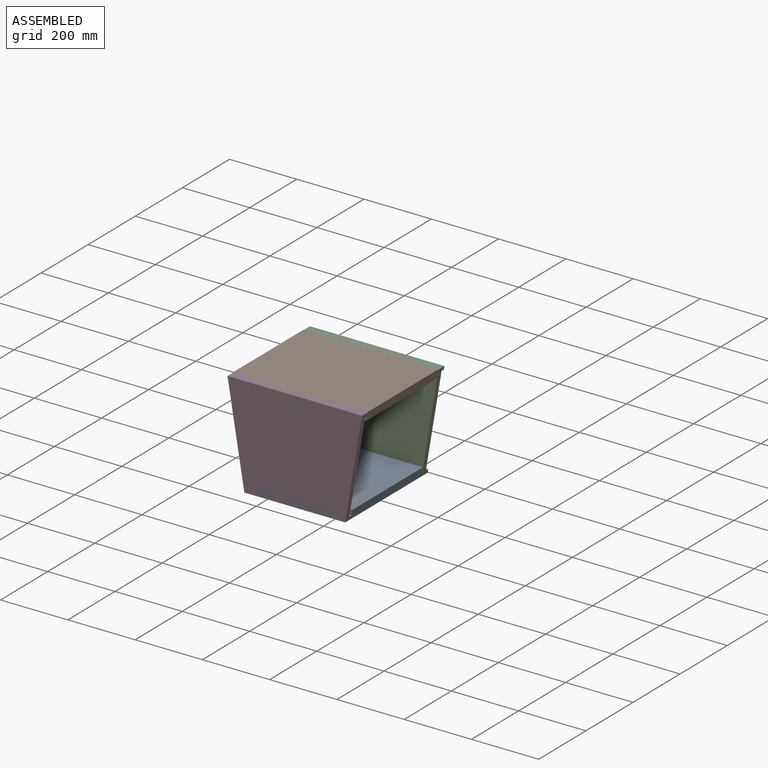
[diagram: assembled view]
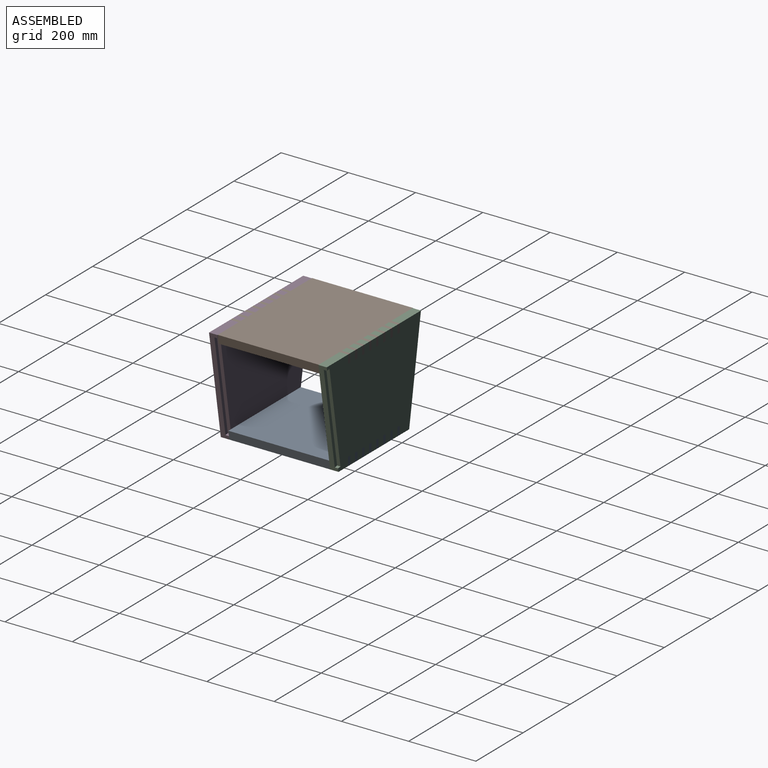
[diagram: assembled view, second angle]
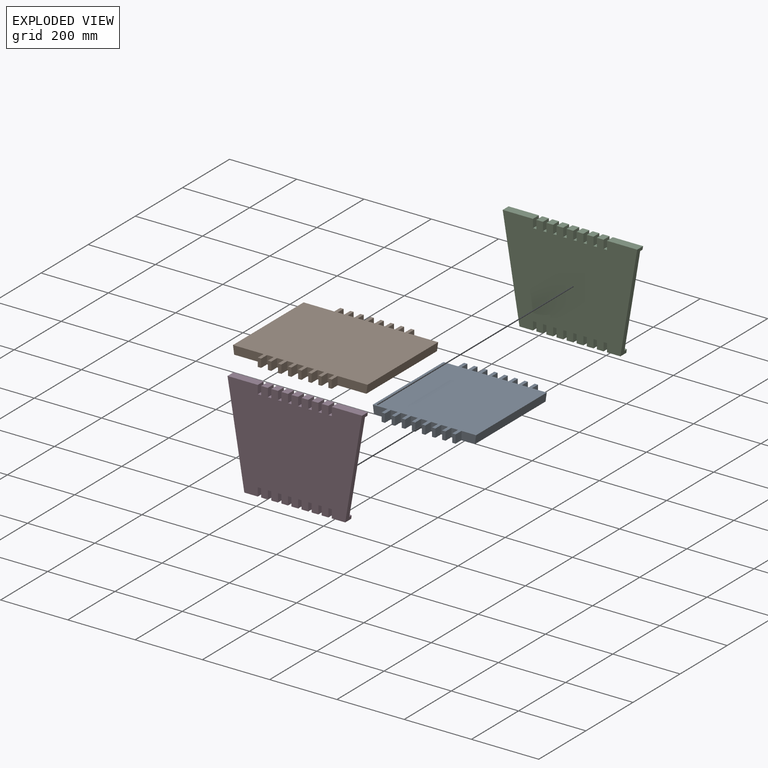
[diagram: exploded view]
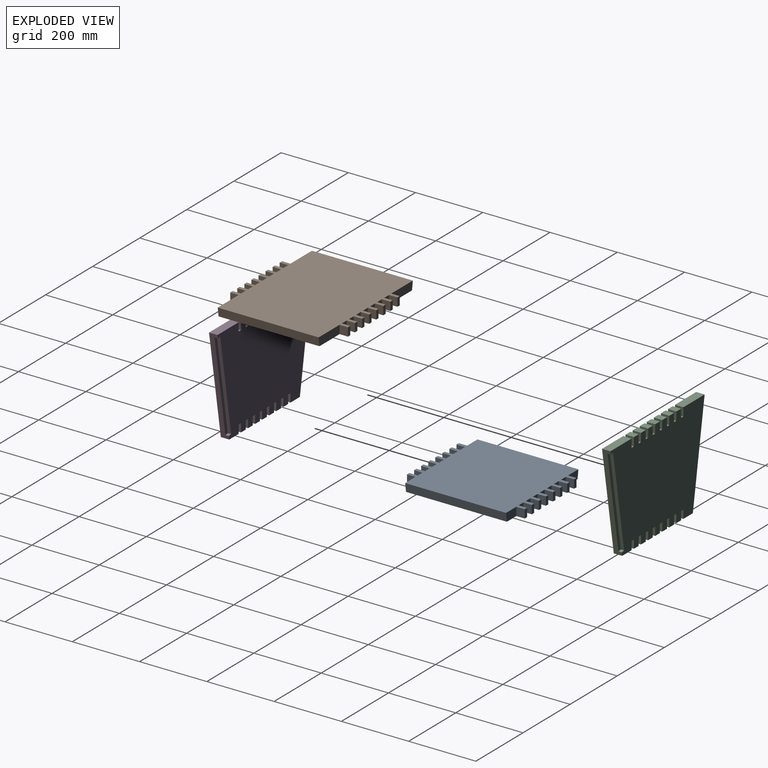
[diagram: exploded view, second angle]
ASSEMBLY  parts=4 mates=3
PART A: 70 faces, bbox 307x350x25 mm
  f0: plane 25x20mm, normal (0,1,0), area 500mm2, adj f1,f67,f68,f69
  f1: plane 25x25mm, normal (1,0,0), area 625mm2, adj f0,f2,f68,f69
  f2: plane 25x10mm, normal (0,1,0), area 250mm2, adj f1,f3,f68,f69
  f3: plane 25x25mm, normal (-1,0,0), area 625mm2, adj f2,f4,f68,f69
  f4: plane 25x20mm, normal (0,1,0), area 500mm2, adj f3,f5,f68,f69
  f5: plane 25x25mm, normal (1,0,0), area 625mm2, adj f4,f6,f68,f69
  f6: plane 25x10mm, normal (0,1,0), area 250mm2, adj f5,f7,f68,f69
  f7: plane 25x25mm, normal (-1,0,0), area 625mm2, adj f6,f8,f68,f69
  f8: plane 25x20mm, normal (0,1,0), area 500mm2, adj f7,f9,f68,f69
  f9: plane 25x25mm, normal (1,0,0), area 625mm2, adj f8,f10,f68,f69
  f10: plane 25x10mm, normal (0,1,0), area 250mm2, adj f9,f11,f68,f69
  f11: plane 25x25mm, normal (-1,0,0), area 625mm2, adj f10,f12,f68,f69
  f12: plane 25x20mm, normal (0,1,0), area 500mm2, adj f11,f13,f68,f69
  f13: plane 25x25mm, normal (1,0,0), area 625mm2, adj f12,f14,f68,f69
  f14: plane 25x10mm, normal (0,1,0), area 250mm2, adj f13,f15,f68,f69
  f15: plane 25x25mm, normal (-1,0,0), area 625mm2, adj f14,f16,f68,f69
  f16: plane 43.51x25mm, normal (0,1,0), area 1043.9mm2, adj f15,f17,f68,f69
  f17: plane 300x25mm, normal (-0.99,0,-0.14), area 7573.7mm2, adj f16,f18,f68,f69
  f18: plane 43.51x25mm, normal (0,-1,0), area 1043.9mm2, adj f17,f19,f68,f69
  f19: plane 25x25mm, normal (-1,0,0), area 625mm2, adj f18,f20,f68,f69
  f20: plane 25x10mm, normal (0,-1,0), area 250mm2, adj f19,f21,f68,f69
  f21: plane 25x25mm, normal (1,0,0), area 625mm2, adj f20,f22,f68,f69
  f22: plane 25x20mm, normal (0,-1,0), area 500mm2, adj f21,f23,f68,f69
  f23: plane 25x25mm, normal (-1,0,0), area 625mm2, adj f22,f24,f68,f69
  f24: plane 25x10mm, normal (0,-1,0), area 250mm2, adj f23,f25,f68,f69
  f25: plane 25x25mm, normal (1,0,0), area 625mm2, adj f24,f26,f68,f69
  f26: plane 25x20mm, normal (0,-1,0), area 500mm2, adj f25,f27,f68,f69
  f27: plane 25x25mm, normal (-1,0,0), area 625mm2, adj f26,f28,f68,f69
  f28: plane 25x10mm, normal (0,-1,0), area 250mm2, adj f27,f29,f68,f69
  f29: plane 25x25mm, normal (1,0,0), area 625mm2, adj f28,f30,f68,f69
  f30: plane 25x20mm, normal (0,-1,0), area 500mm2, adj f29,f31,f68,f69
  f31: plane 25x25mm, normal (-1,0,0), area 625mm2, adj f30,f32,f68,f69
  f32: plane 25x10mm, normal (0,-1,0), area 250mm2, adj f31,f33,f68,f69
  f33: plane 25x25mm, normal (1,0,0), area 625mm2, adj f32,f34,f68,f69
  f34: plane 25x20mm, normal (0,-1,0), area 500mm2, adj f33,f35,f68,f69
  f35: plane 25x25mm, normal (-1,0,0), area 625mm2, adj f34,f36,f68,f69
  f36: plane 25x10mm, normal (0,-1,0), area 250mm2, adj f35,f37,f68,f69
  f37: plane 25x25mm, normal (1,0,0), area 625mm2, adj f36,f38,f68,f69
  f38: plane 25x20mm, normal (0,-1,0), area 500mm2, adj f37,f39,f68,f69
  f39: plane 25x25mm, normal (-1,0,0), area 625mm2, adj f38,f40,f68,f69
  f40: plane 25x10mm, normal (0,-1,0), area 250mm2, adj f39,f41,f68,f69
  f41: plane 25x25mm, normal (1,0,0), area 625mm2, adj f40,f42,f68,f69
  f42: plane 25x20mm, normal (0,-1,0), area 500mm2, adj f41,f43,f68,f69
  f43: plane 25x25mm, normal (-1,0,0), area 625mm2, adj f42,f44,f68,f69
  f44: plane 25x10mm, normal (0,-1,0), area 250mm2, adj f43,f45,f68,f69
  f45: plane 25x25mm, normal (1,0,0), area 625mm2, adj f44,f46,f68,f69
  f46: plane 25x20mm, normal (0,-1,0), area 500mm2, adj f45,f47,f68,f69
  f47: plane 25x25mm, normal (-1,0,0), area 625mm2, adj f46,f48,f68,f69
  f48: plane 25x10mm, normal (0,-1,0), area 250mm2, adj f47,f49,f68,f69
  f49: plane 25x25mm, normal (1,0,0), area 625mm2, adj f48,f50,f68,f69
  f50: plane 43.51x25mm, normal (0,-1,0), area 1043.9mm2, adj f49,f51,f68,f69
  f51: plane 300x25mm, normal (0.99,0,-0.14), area 7573.7mm2, adj f50,f52,f68,f69
  f52: plane 43.51x25mm, normal (0,1,0), area 1043.9mm2, adj f51,f53,f68,f69
  f53: plane 25x25mm, normal (1,0,0), area 625mm2, adj f52,f54,f68,f69
  f54: plane 25x10mm, normal (0,1,0), area 250mm2, adj f53,f55,f68,f69
  f55: plane 25x25mm, normal (-1,0,0), area 625mm2, adj f54,f56,f68,f69
  f56: plane 25x20mm, normal (0,1,0), area 500mm2, adj f55,f57,f68,f69
  f57: plane 25x25mm, normal (1,0,0), area 625mm2, adj f56,f58,f68,f69
  f58: plane 25x10mm, normal (0,1,0), area 250mm2, adj f57,f59,f68,f69
  f59: plane 25x25mm, normal (-1,0,0), area 625mm2, adj f58,f60,f68,f69
  f60: plane 25x20mm, normal (0,1,0), area 500mm2, adj f59,f61,f68,f69
  f61: plane 25x25mm, normal (1,0,0), area 625mm2, adj f60,f62,f68,f69
  f62: plane 25x10mm, normal (0,1,0), area 250mm2, adj f61,f63,f68,f69
  f63: plane 25x25mm, normal (-1,0,0), area 625mm2, adj f62,f64,f68,f69
  f64: plane 25x20mm, normal (0,1,0), area 500mm2, adj f63,f65,f68,f69
  f65: plane 25x25mm, normal (1,0,0), area 625mm2, adj f64,f66,f68,f69
  f66: plane 25x10mm, normal (0,1,0), area 250mm2, adj f65,f67,f68,f69
  f67: plane 25x25mm, normal (-1,0,0), area 625mm2, adj f0,f66,f68,f69
  f68: plane 350x307.03mm, normal (0,0,1), area 96108.1mm2, adj f0,f1,f2,f3,f4,f5,f6,f7
  f69: plane 350x300mm, normal (0,0,-1), area 94000mm2, adj f0,f1,f2,f3,f4,f5,f6,f7
PART B: 70 faces, bbox 400x350x25 mm
  f0: plane 25x20mm, normal (0,1,0), area 500mm2, adj f1,f67,f68,f69
  f1: plane 25x25mm, normal (1,0,0), area 625mm2, adj f0,f2,f68,f69
  f2: plane 25x10mm, normal (0,1,0), area 250mm2, adj f1,f3,f68,f69
  f3: plane 25x25mm, normal (-1,0,0), area 625mm2, adj f2,f4,f68,f69
  f4: plane 25x20mm, normal (0,1,0), area 500mm2, adj f3,f5,f68,f69
  f5: plane 25x25mm, normal (1,0,0), area 625mm2, adj f4,f6,f68,f69
  f6: plane 25x10mm, normal (0,1,0), area 250mm2, adj f5,f7,f68,f69
  f7: plane 25x25mm, normal (-1,0,0), area 625mm2, adj f6,f8,f68,f69
  f8: plane 25x20mm, normal (0,1,0), area 500mm2, adj f7,f9,f68,f69
  f9: plane 25x25mm, normal (1,0,0), area 625mm2, adj f8,f10,f68,f69
  f10: plane 25x10mm, normal (0,1,0), area 250mm2, adj f9,f11,f68,f69
  f11: plane 25x25mm, normal (-1,0,0), area 625mm2, adj f10,f12,f68,f69
  f12: plane 25x20mm, normal (0,1,0), area 500mm2, adj f11,f13,f68,f69
  f13: plane 25x25mm, normal (1,0,0), area 625mm2, adj f12,f14,f68,f69
  f14: plane 25x10mm, normal (0,1,0), area 250mm2, adj f13,f15,f68,f69
  f15: plane 25x25mm, normal (-1,0,0), area 625mm2, adj f14,f16,f68,f69
  f16: plane 91.27x25mm, normal (0,1,0), area 2237.7mm2, adj f15,f17,f68,f69
  f17: plane 300x25mm, normal (-0.99,0,-0.14), area 7573.7mm2, adj f16,f18,f68,f69
  f18: plane 91.27x25mm, normal (0,-1,0), area 2237.7mm2, adj f17,f19,f68,f69
  f19: plane 25x25mm, normal (-1,0,0), area 625mm2, adj f18,f20,f68,f69
  f20: plane 25x10mm, normal (0,-1,0), area 250mm2, adj f19,f21,f68,f69
  f21: plane 25x25mm, normal (1,0,0), area 625mm2, adj f20,f22,f68,f69
  f22: plane 25x20mm, normal (0,-1,0), area 500mm2, adj f21,f23,f68,f69
  f23: plane 25x25mm, normal (-1,0,0), area 625mm2, adj f22,f24,f68,f69
  f24: plane 25x10mm, normal (0,-1,0), area 250mm2, adj f23,f25,f68,f69
  f25: plane 25x25mm, normal (1,0,0), area 625mm2, adj f24,f26,f68,f69
  f26: plane 25x20mm, normal (0,-1,0), area 500mm2, adj f25,f27,f68,f69
  f27: plane 25x25mm, normal (-1,0,0), area 625mm2, adj f26,f28,f68,f69
  f28: plane 25x10mm, normal (0,-1,0), area 250mm2, adj f27,f29,f68,f69
  f29: plane 25x25mm, normal (1,0,0), area 625mm2, adj f28,f30,f68,f69
  f30: plane 25x20mm, normal (0,-1,0), area 500mm2, adj f29,f31,f68,f69
  f31: plane 25x25mm, normal (-1,0,0), area 625mm2, adj f30,f32,f68,f69
  f32: plane 25x10mm, normal (0,-1,0), area 250mm2, adj f31,f33,f68,f69
  f33: plane 25x25mm, normal (1,0,0), area 625mm2, adj f32,f34,f68,f69
  f34: plane 25x20mm, normal (0,-1,0), area 500mm2, adj f33,f35,f68,f69
  f35: plane 25x25mm, normal (-1,0,0), area 625mm2, adj f34,f36,f68,f69
  f36: plane 25x10mm, normal (0,-1,0), area 250mm2, adj f35,f37,f68,f69
  f37: plane 25x25mm, normal (1,0,0), area 625mm2, adj f36,f38,f68,f69
  f38: plane 25x20mm, normal (0,-1,0), area 500mm2, adj f37,f39,f68,f69
  f39: plane 25x25mm, normal (-1,0,0), area 625mm2, adj f38,f40,f68,f69
  f40: plane 25x10mm, normal (0,-1,0), area 250mm2, adj f39,f41,f68,f69
  f41: plane 25x25mm, normal (1,0,0), area 625mm2, adj f40,f42,f68,f69
  f42: plane 25x20mm, normal (0,-1,0), area 500mm2, adj f41,f43,f68,f69
  f43: plane 25x25mm, normal (-1,0,0), area 625mm2, adj f42,f44,f68,f69
  f44: plane 25x10mm, normal (0,-1,0), area 250mm2, adj f43,f45,f68,f69
  f45: plane 25x25mm, normal (1,0,0), area 625mm2, adj f44,f46,f68,f69
  f46: plane 25x20mm, normal (0,-1,0), area 500mm2, adj f45,f47,f68,f69
  f47: plane 25x25mm, normal (-1,0,0), area 625mm2, adj f46,f48,f68,f69
  f48: plane 25x10mm, normal (0,-1,0), area 250mm2, adj f47,f49,f68,f69
  f49: plane 25x25mm, normal (1,0,0), area 625mm2, adj f48,f50,f68,f69
  f50: plane 88.74x25mm, normal (0,-1,0), area 2174.5mm2, adj f49,f51,f68,f69
  f51: plane 300x25mm, normal (0.99,0,-0.14), area 7573.7mm2, adj f50,f52,f68,f69
  f52: plane 88.74x25mm, normal (0,1,0), area 2174.5mm2, adj f51,f53,f68,f69
  f53: plane 25x25mm, normal (1,0,0), area 625mm2, adj f52,f54,f68,f69
  f54: plane 25x10mm, normal (0,1,0), area 250mm2, adj f53,f55,f68,f69
  f55: plane 25x25mm, normal (-1,0,0), area 625mm2, adj f54,f56,f68,f69
  f56: plane 25x20mm, normal (0,1,0), area 500mm2, adj f55,f57,f68,f69
  f57: plane 25x25mm, normal (1,0,0), area 625mm2, adj f56,f58,f68,f69
  f58: plane 25x10mm, normal (0,1,0), area 250mm2, adj f57,f59,f68,f69
  f59: plane 25x25mm, normal (-1,0,0), area 625mm2, adj f58,f60,f68,f69
  f60: plane 25x20mm, normal (0,1,0), area 500mm2, adj f59,f61,f68,f69
  f61: plane 25x25mm, normal (1,0,0), area 625mm2, adj f60,f62,f68,f69
  f62: plane 25x10mm, normal (0,1,0), area 250mm2, adj f61,f63,f68,f69
  f63: plane 25x25mm, normal (-1,0,0), area 625mm2, adj f62,f64,f68,f69
  f64: plane 25x20mm, normal (0,1,0), area 500mm2, adj f63,f65,f68,f69
  f65: plane 25x25mm, normal (1,0,0), area 625mm2, adj f64,f66,f68,f69
  f66: plane 25x10mm, normal (0,1,0), area 250mm2, adj f65,f67,f68,f69
  f67: plane 25x25mm, normal (-1,0,0), area 625mm2, adj f0,f66,f68,f69
  f68: plane 400x350mm, normal (0,0,1), area 124000mm2, adj f0,f1,f2,f3,f4,f5,f6,f7
  f69: plane 392.97x350mm, normal (0,0,-1), area 121891.9mm2, adj f0,f1,f2,f3,f4,f5,f6,f7
PART C: 74 faces, bbox 400x25x300 mm
  f0: plane 300x50mm, normal (0.99,0,-0.16), area 4762.1mm2, adj f1,f67,f68,f69,f70,f71,f72
  f1: plane 90x25mm, normal (0,0,1), area 2250mm2, adj f0,f2,f68,f69
  f2: plane 25x25mm, normal (-1,0,0), area 625mm2, adj f1,f3,f68,f69
  f3: plane 25x10mm, normal (0,0,1), area 250mm2, adj f2,f4,f68,f69
  f4: plane 25x25mm, normal (1,0,0), area 625mm2, adj f3,f5,f68,f69
  f5: plane 25x20mm, normal (0,0,1), area 500mm2, adj f4,f6,f68,f69
  f6: plane 25x25mm, normal (-1,0,0), area 625mm2, adj f5,f7,f68,f69
  f7: plane 25x10mm, normal (0,0,1), area 250mm2, adj f6,f8,f68,f69
  f8: plane 25x25mm, normal (1,0,0), area 625mm2, adj f7,f9,f68,f69
  f9: plane 25x20mm, normal (0,0,1), area 500mm2, adj f8,f10,f68,f69
  f10: plane 25x25mm, normal (-1,0,0), area 625mm2, adj f9,f11,f68,f69
  f11: plane 25x10mm, normal (0,0,1), area 250mm2, adj f10,f12,f68,f69
  f12: plane 25x25mm, normal (1,0,0), area 625mm2, adj f11,f13,f68,f69
  f13: plane 25x20mm, normal (0,0,1), area 500mm2, adj f12,f14,f68,f69
  f14: plane 25x25mm, normal (-1,0,0), area 625mm2, adj f13,f15,f68,f69
  f15: plane 25x10mm, normal (0,0,1), area 250mm2, adj f14,f16,f68,f69
  f16: plane 25x25mm, normal (1,0,0), area 625mm2, adj f15,f17,f68,f69
  f17: plane 25x20mm, normal (0,0,1), area 500mm2, adj f16,f18,f68,f69
  f18: plane 25x25mm, normal (-1,0,0), area 625mm2, adj f17,f19,f68,f69
  f19: plane 25x10mm, normal (0,0,1), area 250mm2, adj f18,f20,f68,f69
  f20: plane 25x25mm, normal (1,0,0), area 625mm2, adj f19,f21,f68,f69
  f21: plane 25x20mm, normal (0,0,1), area 500mm2, adj f20,f22,f68,f69
  f22: plane 25x25mm, normal (-1,0,0), area 625mm2, adj f21,f23,f68,f69
  f23: plane 25x10mm, normal (0,0,1), area 250mm2, adj f22,f24,f68,f69
  f24: plane 25x25mm, normal (1,0,0), area 625mm2, adj f23,f25,f68,f69
  f25: plane 25x20mm, normal (0,0,1), area 500mm2, adj f24,f26,f68,f69
  f26: plane 25x25mm, normal (-1,0,0), area 625mm2, adj f25,f27,f68,f69
  f27: plane 25x10mm, normal (0,0,1), area 250mm2, adj f26,f28,f68,f69
  f28: plane 25x25mm, normal (1,0,0), area 625mm2, adj f27,f29,f68,f69
  f29: plane 25x20mm, normal (0,0,1), area 500mm2, adj f28,f30,f68,f69
  f30: plane 25x25mm, normal (-1,0,0), area 625mm2, adj f29,f31,f68,f69
  f31: plane 25x10mm, normal (0,0,1), area 250mm2, adj f30,f32,f68,f69
  f32: plane 25x25mm, normal (1,0,0), area 625mm2, adj f31,f33,f68,f69
  f33: plane 90x25mm, normal (0,0,1), area 2250mm2, adj f32,f34,f68,f69
  f34: plane 300x50mm, normal (-0.99,0,-0.16), area 7603.5mm2, adj f33,f35,f68,f69
  f35: plane 40x25mm, normal (0,0,-1), area 1000mm2, adj f34,f36,f68,f69
  f36: plane 25x25mm, normal (1,0,0), area 625mm2, adj f35,f37,f68,f69
  f37: plane 25x10mm, normal (0,0,-1), area 250mm2, adj f36,f38,f68,f69
  f38: plane 25x25mm, normal (-1,0,0), area 625mm2, adj f37,f39,f68,f69
  f39: plane 25x20mm, normal (0,0,-1), area 500mm2, adj f38,f40,f68,f69
  f40: plane 25x25mm, normal (1,0,0), area 625mm2, adj f39,f41,f68,f69
  f41: plane 25x10mm, normal (0,0,-1), area 250mm2, adj f40,f42,f68,f69
  f42: plane 25x25mm, normal (-1,0,0), area 625mm2, adj f41,f43,f68,f69
  f43: plane 25x20mm, normal (0,0,-1), area 500mm2, adj f42,f44,f68,f69
  f44: plane 25x25mm, normal (1,0,0), area 625mm2, adj f43,f45,f68,f69
  f45: plane 25x10mm, normal (0,0,-1), area 250mm2, adj f44,f46,f68,f69
  f46: plane 25x25mm, normal (-1,0,0), area 625mm2, adj f45,f47,f68,f69
  f47: plane 25x20mm, normal (0,0,-1), area 500mm2, adj f46,f48,f68,f69
  f48: plane 25x25mm, normal (1,0,0), area 625mm2, adj f47,f49,f68,f69
  f49: plane 25x10mm, normal (0,0,-1), area 250mm2, adj f48,f50,f68,f69
  f50: plane 25x25mm, normal (-1,0,0), area 625mm2, adj f49,f51,f68,f69
  f51: plane 25x20mm, normal (0,0,-1), area 500mm2, adj f50,f52,f68,f69
  f52: plane 25x25mm, normal (1,0,0), area 625mm2, adj f51,f53,f68,f69
  f53: plane 25x10mm, normal (0,0,-1), area 250mm2, adj f52,f54,f68,f69
  f54: plane 25x25mm, normal (-1,0,0), area 625mm2, adj f53,f55,f68,f69
  f55: plane 25x20mm, normal (0,0,-1), area 500mm2, adj f54,f56,f68,f69
  f56: plane 25x25mm, normal (1,0,0), area 625mm2, adj f55,f57,f68,f69
  f57: plane 25x10mm, normal (0,0,-1), area 250mm2, adj f56,f58,f68,f69
  f58: plane 25x25mm, normal (-1,0,0), area 625mm2, adj f57,f59,f68,f69
  f59: plane 25x20mm, normal (0,0,-1), area 500mm2, adj f58,f60,f68,f69
  f60: plane 25x25mm, normal (1,0,0), area 625mm2, adj f59,f61,f68,f69
  f61: plane 25x10mm, normal (0,0,-1), area 250mm2, adj f60,f62,f68,f69
  f62: plane 25x25mm, normal (-1,0,0), area 625mm2, adj f61,f63,f68,f69
  f63: plane 25x20mm, normal (0,0,-1), area 500mm2, adj f62,f64,f68,f69
  f64: plane 25x25mm, normal (1,0,0), area 625mm2, adj f63,f65,f68,f69
  f65: plane 25x10mm, normal (0,0,-1), area 250mm2, adj f64,f66,f68,f69
  f66: plane 25x25mm, normal (-1,0,0), area 625mm2, adj f65,f67,f68,f69
  f67: plane 40x25mm, normal (0,0,-1), area 1000mm2, adj f0,f66,f68,f69
  f68: plane 400x300mm, normal (0,-1,0), area 101000mm2, adj f0,f1,f2,f3,f4,f5,f6,f7
  f69: plane 400x300mm, normal (0,1,0), area 98158.6mm2, adj f0,f1,f2,f3,f4,f5,f6,f7
  f70: plane 10x9.86mm, normal (0.16,0,0.99), area 100mm2, adj f0,f69,f72,f73
  f71: plane 10x9.86mm, normal (-0.16,0,-0.99), area 100mm2, adj f0,f69,f72,f73
  f72: plane 281.92x56.58mm, normal (0,1,0), area 2841.4mm2, adj f0,f70,f71,f73
  f73: plane 280.27x46.71mm, normal (0.99,0,-0.16), area 2841.4mm2, adj f69,f70,f71,f72
PART D: same geometry as C
PLACE A t=(-107.35,-193.74,-98.89)mm
PLACE B t=(-108.61,-193.74,176.11)mm
PLACE C t=(-107.35,-18.74,51.11)mm
PLACE D t=(-107.35,-343.74,51.11)mm
MATE fastened B.f46 <-> D.f69  axis (0,-1,0) through (-17.35,-343.74,201.11)mm
MATE fastened D.f69 <-> A.f22  axis (0,1,0) through (-197.35,-343.74,-98.89)mm
MATE fastened C.f68 <-> B.f56  axis (0,-1,0) through (-17.35,-43.74,201.11)mm
